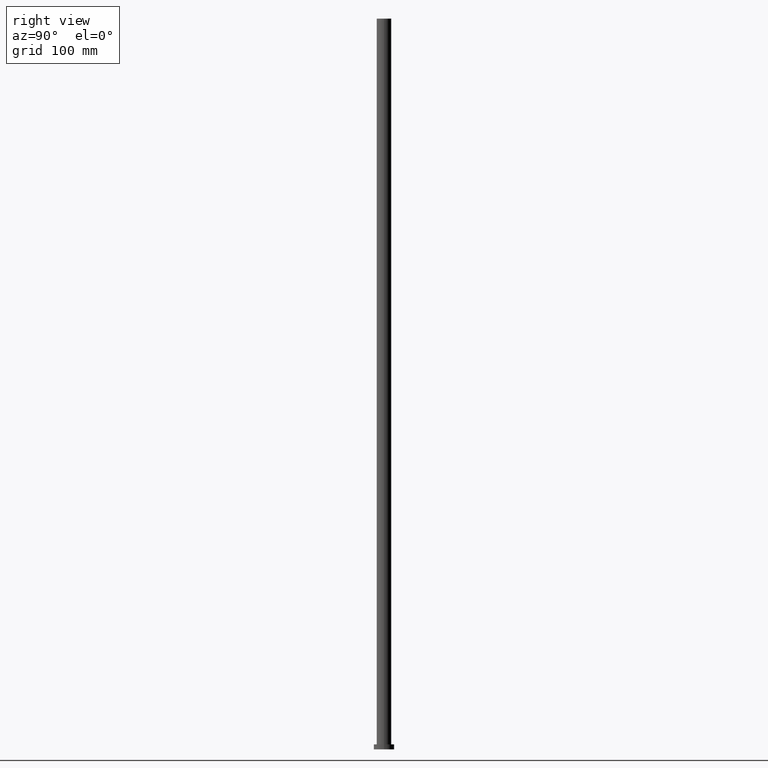
[diagram: clean part render]
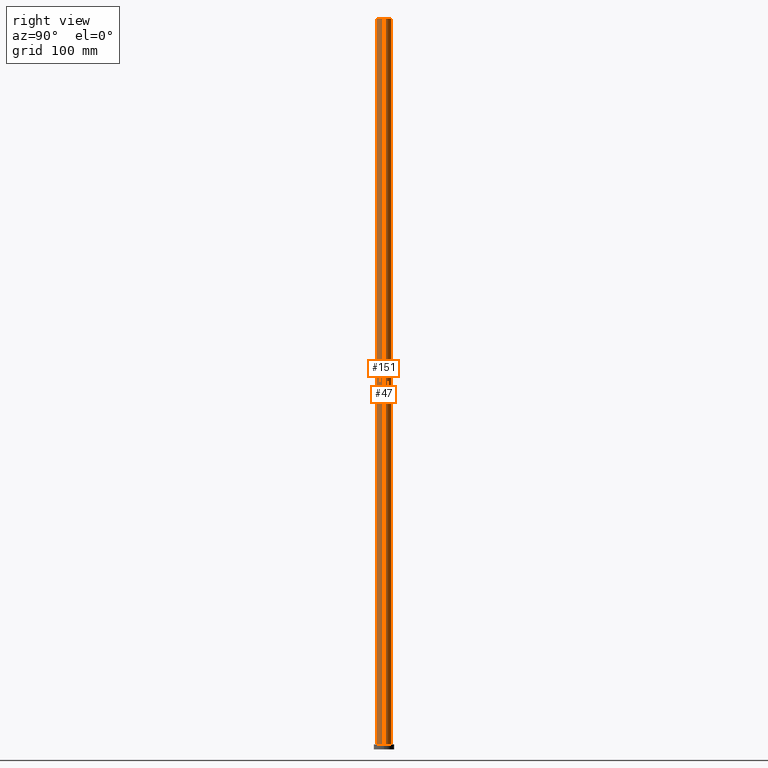
[diagram: same view with one multi-face feature highlighted, each face labeled with its STEP entity id]
A machine part, right view. The highlighted faces form ONE feature: a constant-radius fillet chain: 2 tangent blend faces with common blend radius 10 mm. The faces share edges in the B-rep.
Their STEP definitions:
[1] entity #47 (Cylinder):
#2 = EDGE_CURVE ( 'NONE', #137, #162, #192, .T. ) ;
#5 = EDGE_LOOP ( 'NONE', ( #97, #98, #62, #237 ) ) ;
#21 = DIRECTION ( 'NONE',  ( 1.000000000000000000, 0.000000000000000000, 0.000000000000000000 ) ) ;
#46 = DIRECTION ( 'NONE',  ( 0.000000000000000000, 0.000000000000000000, 1.000000000000000000 ) ) ;
#47 = ADVANCED_FACE ( 'NONE', ( #129 ), #223, .T. ) ;
#50 = DIRECTION ( 'NONE',  ( 0.000000000000000000, 0.000000000000000000, 1.000000000000000000 ) ) ;
#52 = CIRCLE ( 'NONE', #99, 10.00000000000000000 ) ;
#58 = VERTEX_POINT ( 'NONE', #207 ) ;
#62 = ORIENTED_EDGE ( 'NONE', *, *, #2, .T. ) ;
#70 = DIRECTION ( 'NONE',  ( -1.000000000000000000, 0.000000000000000000, 0.000000000000000000 ) ) ;
#82 = AXIS2_PLACEMENT_3D ( 'NONE', #89, #124, #70 ) ;
#89 = CARTESIAN_POINT ( 'NONE',  ( 0.000000000000000000, 0.000000000000000000, 1000.000000000000000 ) ) ;
#94 = EDGE_CURVE ( 'NONE', #58, #137, #128, .T. ) ;
#95 = DIRECTION ( 'NONE',  ( -0.000000000000000000, -0.000000000000000000, -1.000000000000000000 ) ) ;
#97 = ORIENTED_EDGE ( 'NONE', *, *, #253, .F. ) ;
#98 = ORIENTED_EDGE ( 'NONE', *, *, #94, .T. ) ;
#99 = AXIS2_PLACEMENT_3D ( 'NONE', #189, #50, #21 ) ;
#104 = VECTOR ( 'NONE', #205, 1000.000000000000000 ) ;
#106 = CARTESIAN_POINT ( 'NONE',  ( -10.00000000000000000, 0.000000000000000000, 1000.000000000000000 ) ) ;
#109 = CARTESIAN_POINT ( 'NONE',  ( -10.00000000000000000, 0.000000000000000000, 7.000000000000000000 ) ) ;
#116 = AXIS2_PLACEMENT_3D ( 'NONE', #170, #46, #245 ) ;
#118 = VERTEX_POINT ( 'NONE', #106 ) ;
#124 = DIRECTION ( 'NONE',  ( -0.000000000000000000, -0.000000000000000000, -1.000000000000000000 ) ) ;
#125 = CARTESIAN_POINT ( 'NONE',  ( 10.00000000000000000, 1.224646799147353256E-15, 1000.000000000000000 ) ) ;
#128 = LINE ( 'NONE', #125, #104 ) ;
#129 = FACE_OUTER_BOUND ( 'NONE', #5, .T. ) ;
#131 = CARTESIAN_POINT ( 'NONE',  ( -10.00000000000000000, 0.000000000000000000, 1000.000000000000000 ) ) ;
#137 = VERTEX_POINT ( 'NONE', #248 ) ;
#162 = VERTEX_POINT ( 'NONE', #109 ) ;
#168 = EDGE_CURVE ( 'NONE', #118, #162, #173, .T. ) ;
#170 = CARTESIAN_POINT ( 'NONE',  ( 0.000000000000000000, 0.000000000000000000, 7.000000000000000000 ) ) ;
#173 = LINE ( 'NONE', #131, #208 ) ;
#189 = CARTESIAN_POINT ( 'NONE',  ( 0.000000000000000000, 0.000000000000000000, 1000.000000000000000 ) ) ;
#192 = CIRCLE ( 'NONE', #116, 10.00000000000000000 ) ;
#205 = DIRECTION ( 'NONE',  ( -0.000000000000000000, -0.000000000000000000, -1.000000000000000000 ) ) ;
#207 = CARTESIAN_POINT ( 'NONE',  ( 10.00000000000000000, 1.224646799147353256E-15, 1000.000000000000000 ) ) ;
#208 = VECTOR ( 'NONE', #95, 1000.000000000000000 ) ;
#223 = CYLINDRICAL_SURFACE ( 'NONE', #82, 10.00000000000000000 ) ;
#237 = ORIENTED_EDGE ( 'NONE', *, *, #168, .F. ) ;
#245 = DIRECTION ( 'NONE',  ( 1.000000000000000000, 0.000000000000000000, 0.000000000000000000 ) ) ;
#248 = CARTESIAN_POINT ( 'NONE',  ( 10.00000000000000000, 1.224646799147353256E-15, 7.000000000000000000 ) ) ;
#253 = EDGE_CURVE ( 'NONE', #58, #118, #52, .T. ) ;
[2] entity #151 (Cylinder):
#7 = EDGE_LOOP ( 'NONE', ( #80, #56, #40, #43 ) ) ;
#14 = CARTESIAN_POINT ( 'NONE',  ( 0.000000000000000000, 0.000000000000000000, 1000.000000000000000 ) ) ;
#34 = CARTESIAN_POINT ( 'NONE',  ( 0.000000000000000000, 0.000000000000000000, 1000.000000000000000 ) ) ;
#38 = FACE_OUTER_BOUND ( 'NONE', #7, .T. ) ;
#40 = ORIENTED_EDGE ( 'NONE', *, *, #168, .T. ) ;
#43 = ORIENTED_EDGE ( 'NONE', *, *, #140, .T. ) ;
#56 = ORIENTED_EDGE ( 'NONE', *, *, #75, .F. ) ;
#58 = VERTEX_POINT ( 'NONE', #207 ) ;
#75 = EDGE_CURVE ( 'NONE', #118, #58, #81, .T. ) ;
#77 = DIRECTION ( 'NONE',  ( -0.000000000000000000, -0.000000000000000000, -1.000000000000000000 ) ) ;
#80 = ORIENTED_EDGE ( 'NONE', *, *, #94, .F. ) ;
#81 = CIRCLE ( 'NONE', #221, 10.00000000000000000 ) ;
#93 = CARTESIAN_POINT ( 'NONE',  ( 0.000000000000000000, 0.000000000000000000, 7.000000000000000000 ) ) ;
#94 = EDGE_CURVE ( 'NONE', #58, #137, #128, .T. ) ;
#95 = DIRECTION ( 'NONE',  ( -0.000000000000000000, -0.000000000000000000, -1.000000000000000000 ) ) ;
#104 = VECTOR ( 'NONE', #205, 1000.000000000000000 ) ;
#106 = CARTESIAN_POINT ( 'NONE',  ( -10.00000000000000000, 0.000000000000000000, 1000.000000000000000 ) ) ;
#109 = CARTESIAN_POINT ( 'NONE',  ( -10.00000000000000000, 0.000000000000000000, 7.000000000000000000 ) ) ;
#111 = AXIS2_PLACEMENT_3D ( 'NONE', #93, #190, #112 ) ;
#112 = DIRECTION ( 'NONE',  ( 1.000000000000000000, 0.000000000000000000, 0.000000000000000000 ) ) ;
#114 = CYLINDRICAL_SURFACE ( 'NONE', #175, 10.00000000000000000 ) ;
#118 = VERTEX_POINT ( 'NONE', #106 ) ;
#125 = CARTESIAN_POINT ( 'NONE',  ( 10.00000000000000000, 1.224646799147353256E-15, 1000.000000000000000 ) ) ;
#128 = LINE ( 'NONE', #125, #104 ) ;
#131 = CARTESIAN_POINT ( 'NONE',  ( -10.00000000000000000, 0.000000000000000000, 1000.000000000000000 ) ) ;
#137 = VERTEX_POINT ( 'NONE', #248 ) ;
#140 = EDGE_CURVE ( 'NONE', #162, #137, #224, .T. ) ;
#151 = ADVANCED_FACE ( 'NONE', ( #38 ), #114, .T. ) ;
#162 = VERTEX_POINT ( 'NONE', #109 ) ;
#168 = EDGE_CURVE ( 'NONE', #118, #162, #173, .T. ) ;
#173 = LINE ( 'NONE', #131, #208 ) ;
#175 = AXIS2_PLACEMENT_3D ( 'NONE', #14, #77, #188 ) ;
#180 = DIRECTION ( 'NONE',  ( 1.000000000000000000, 0.000000000000000000, 0.000000000000000000 ) ) ;
#181 = DIRECTION ( 'NONE',  ( 0.000000000000000000, 0.000000000000000000, 1.000000000000000000 ) ) ;
#188 = DIRECTION ( 'NONE',  ( -1.000000000000000000, 0.000000000000000000, 0.000000000000000000 ) ) ;
#190 = DIRECTION ( 'NONE',  ( 0.000000000000000000, 0.000000000000000000, 1.000000000000000000 ) ) ;
#205 = DIRECTION ( 'NONE',  ( -0.000000000000000000, -0.000000000000000000, -1.000000000000000000 ) ) ;
#207 = CARTESIAN_POINT ( 'NONE',  ( 10.00000000000000000, 1.224646799147353256E-15, 1000.000000000000000 ) ) ;
#208 = VECTOR ( 'NONE', #95, 1000.000000000000000 ) ;
#221 = AXIS2_PLACEMENT_3D ( 'NONE', #34, #181, #180 ) ;
#224 = CIRCLE ( 'NONE', #111, 10.00000000000000000 ) ;
#248 = CARTESIAN_POINT ( 'NONE',  ( 10.00000000000000000, 1.224646799147353256E-15, 7.000000000000000000 ) ) ;